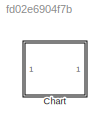
MODEL slx_fd02e6904f7b
KIND model
CONFIG AbsTol = auto
CONFIG EnableMultiTasking = off
CONFIG FixedStep = auto
CONFIG MaxStep = auto
CONFIG MinStep = auto
CONFIG RelTol = 1e-3
CONFIG SampleTimeConstraint = Unconstrained
CONFIG Solver = VariableStepAuto
CONFIG SolverName = VariableStepAuto
CONFIG StartTime = 0.0
CONFIG StopTime = 0.1
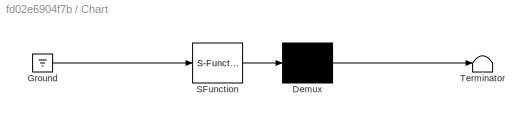
BLOCK [SubSystem] Chart
  ErrorFcn = Stateflow.Translate.translate
  PermitHierarchicalResolution = ExplicitOnly
  Ports = []
  RequestExecContextInheritance = off
  SFBlockType = Chart
  TreatAsAtomicUnit = on
BLOCK [Demux] Chart/ Demux 
  Outputs = 1
  Ports = [1, 1]
BLOCK [Ground] Chart/ Ground 
BLOCK [S-Function] Chart/ SFunction 
  EnableBusSupport = on
  FunctionName = sf_sfun
  PortCounts = [1 1]
  Ports = [1, 1]
  SFcnIsStateOwnerBlock = off
  SFunctionDeploymentMode = off
  Tag = Stateflow S-Function EarlyReturn15_2018a 3
BLOCK [Terminator] Chart/ Terminator 
CHART Chart states=7 transitions=4
  STATE_LABEL 'S\nen: f("enS")'
  STATE_LABEL 'A1\nen: f("enA1")'
  STATE_LABEL 'A1a\nen: f("enA1a")'
  STATE_LABEL 'A1b\nen: f("enA1b")'
  STATE_LABEL '{f("ca")}/{E;f("ta")}'
  STATE_LABEL 'A2\nen: f("enA2")'
  STATE_LABEL 'A1\nen: f("enA1")'
  STATE_LABEL 'A1a\nen: f("enA1a")'
  STATE_LABEL 'A1b\nen: f("enA1b")'
  STATE_LABEL '{f("ca")}/{E;f("ta")}'
  STATE_LABEL 'A1a\nen: f("enA1a")'
  STATE_LABEL 'A1b\nen: f("enA1b")'
  STATE_LABEL 'A2\nen: f("enA2")'
  STATE_LABEL 'B\nen: f("enB")'
  STATE_LABEL 'f(s)'
  STATE_LABEL 'SCRIPT:\nfunction f(s)\n  fprintf(s+"\\n");\n'
